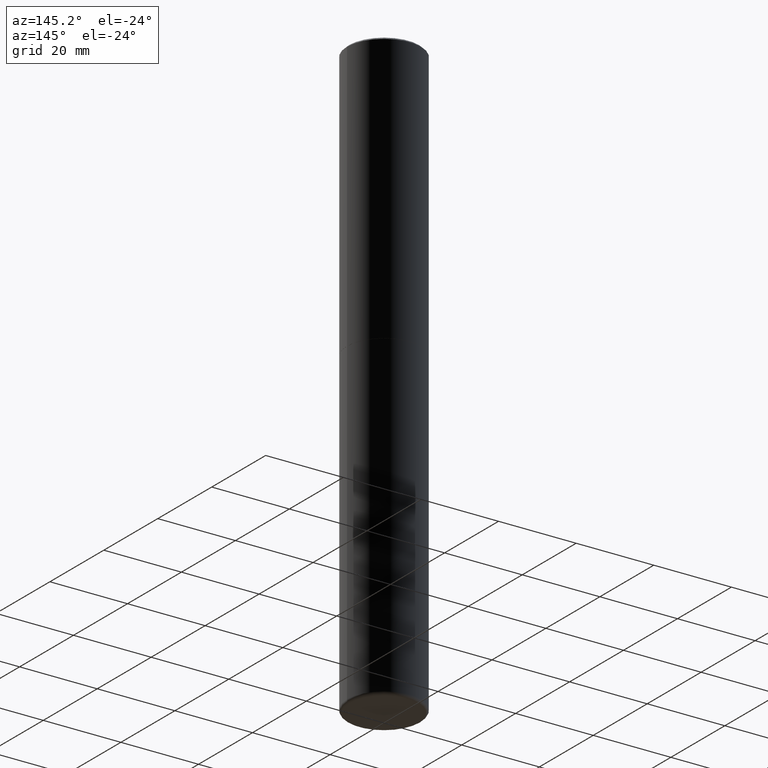
[diagram: clean part render]
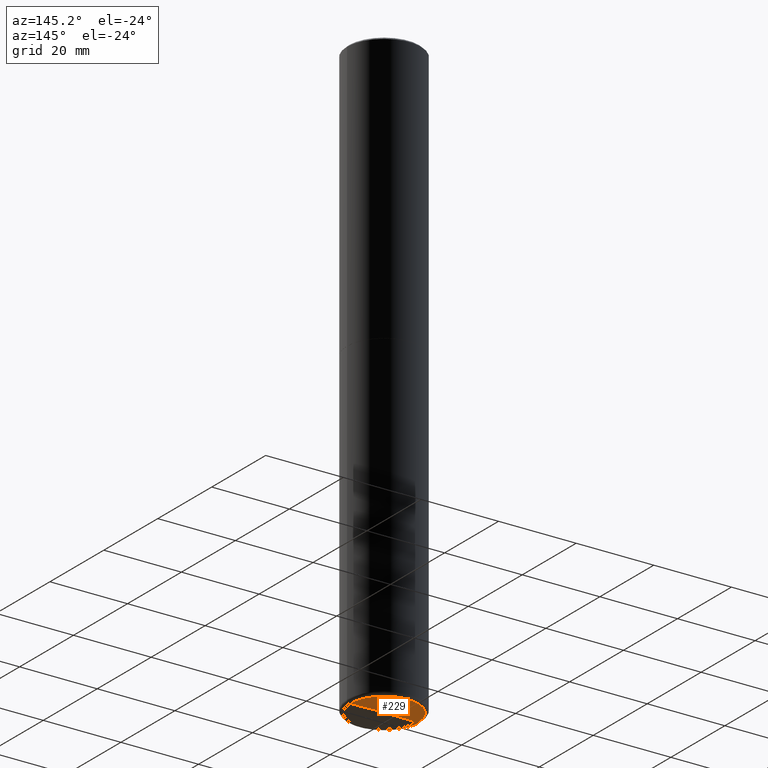
[diagram: same view with one face highlighted and labeled with its STEP entity id]
A machine part, auxiliary view. The second image highlights one B-rep face of the part: STEP entity #229.
In plain terms, the highlighted conical surface has half-angle 89 deg.
Its self-contained STEP definition (entity closure, byte-faithful):
#20 = CARTESIAN_POINT ( 'NONE',  ( -0.3444764278068836449, -1.854340604125513887E-14, -5.999995430854690781 ) ) ;
#34 = DIRECTION ( 'NONE',  ( 0.9998476951563914916, -6.920387862090554779E-15, -0.01745240643727449803 ) ) ;
#53 = CARTESIAN_POINT ( 'NONE',  ( 0.3444764278068836449, -2.331215192322190793E-14, -5.999995430854690781 ) ) ;
#74 = CARTESIAN_POINT ( 'NONE',  ( 1.465921931284023718E-28, -2.092627166218079772E-14, -5.993982572441084677 ) ) ;
#76 = VECTOR ( 'NONE', #34, 39.37007874015747433 ) ;
#94 = EDGE_CURVE ( 'NONE', #405, #169, #244, .T. ) ;
#99 = ORIENTED_EDGE ( 'NONE', *, *, #94, .F. ) ;
#119 = DIRECTION ( 'NONE',  ( -0.9998476951563914916, 6.920964387254067832E-15, -0.01745240643727449803 ) ) ;
#139 = CARTESIAN_POINT ( 'NONE',  ( 1.606634848428436349E-18, -2.092787829702907951E-14, -5.993982572441084677 ) ) ;
#142 = ORIENTED_EDGE ( 'NONE', *, *, #255, .T. ) ;
#150 = DIRECTION ( 'NONE',  ( 2.445468806185136597E-29, -3.491481338843145583E-15, -1.000000000000000000 ) ) ;
#155 = DIRECTION ( 'NONE',  ( -2.445468806185136597E-29, 3.491481338843145583E-15, 1.000000000000000000 ) ) ;
#165 = CIRCLE ( 'NONE', #227, 0.3444764278068817021 ) ;
#169 = VERTEX_POINT ( 'NONE', #53 ) ;
#171 = AXIS2_PLACEMENT_3D ( 'NONE', #222, #150, #299 ) ;
#188 = FACE_OUTER_BOUND ( 'NONE', #212, .T. ) ;
#191 = CARTESIAN_POINT ( 'NONE',  ( -1.606634848135274182E-18, -2.092787829702907951E-14, -5.993982572441084677 ) ) ;
#212 = EDGE_LOOP ( 'NONE', ( #99, #142, #269 ) ) ;
#220 = EDGE_CURVE ( 'NONE', #169, #372, #165, .T. ) ;
#222 = CARTESIAN_POINT ( 'NONE',  ( 1.109363968618297551E-27, -1.583877735270742058E-13, -45.36406131259856522 ) ) ;
#227 = AXIS2_PLACEMENT_3D ( 'NONE', #368, #155, #395 ) ;
#229 = ADVANCED_FACE ( 'NONE', ( #188 ), #391, .F. ) ;
#244 = LINE ( 'NONE', #139, #76 ) ;
#255 = EDGE_CURVE ( 'NONE', #405, #372, #430, .T. ) ;
#269 = ORIENTED_EDGE ( 'NONE', *, *, #220, .F. ) ;
#274 = VECTOR ( 'NONE', #119, 39.37007874015747433 ) ;
#299 = DIRECTION ( 'NONE',  ( -1.000000000000000000, 6.982962677686267499E-15, 0.000000000000000000 ) ) ;
#368 = CARTESIAN_POINT ( 'NONE',  ( 1.467280166340849566E-28, -2.094887207997329190E-14, -5.999995430854690781 ) ) ;
#372 = VERTEX_POINT ( 'NONE', #20 ) ;
#391 = CONICAL_SURFACE ( 'NONE', #171, 2255.510300424765319, 1.553343034274962342 ) ;
#395 = DIRECTION ( 'NONE',  ( 1.000000000000000000, -6.982962677686268288E-15, 0.000000000000000000 ) ) ;
#405 = VERTEX_POINT ( 'NONE', #74 ) ;
#430 = LINE ( 'NONE', #191, #274 ) ;